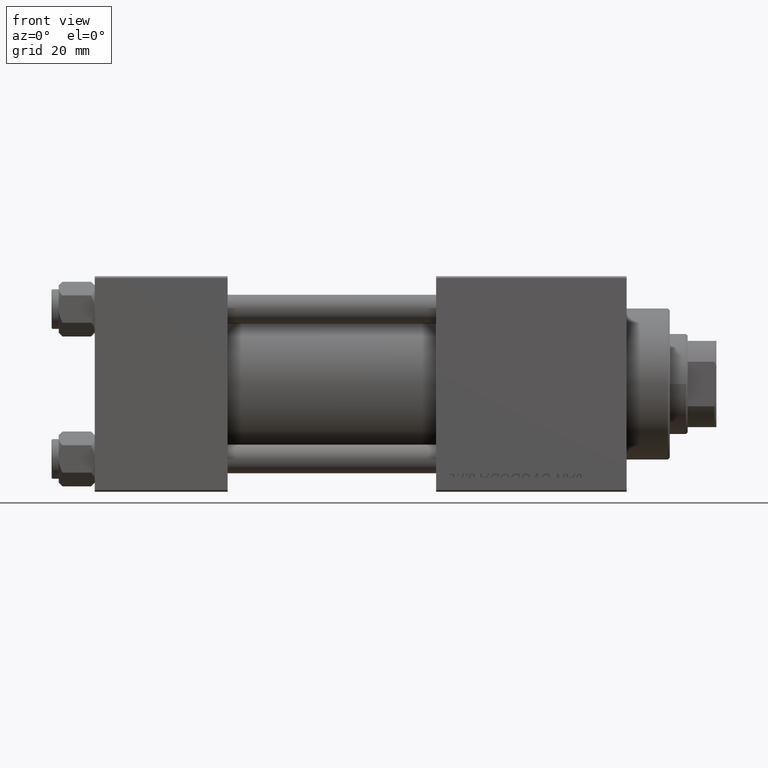
[diagram: clean part render]
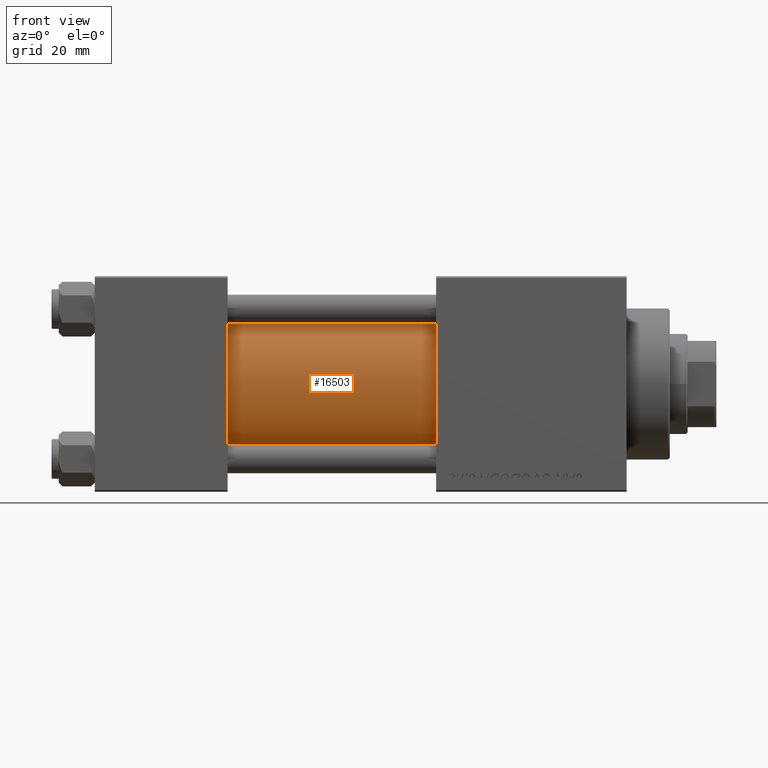
[diagram: same view with one face highlighted and labeled with its STEP entity id]
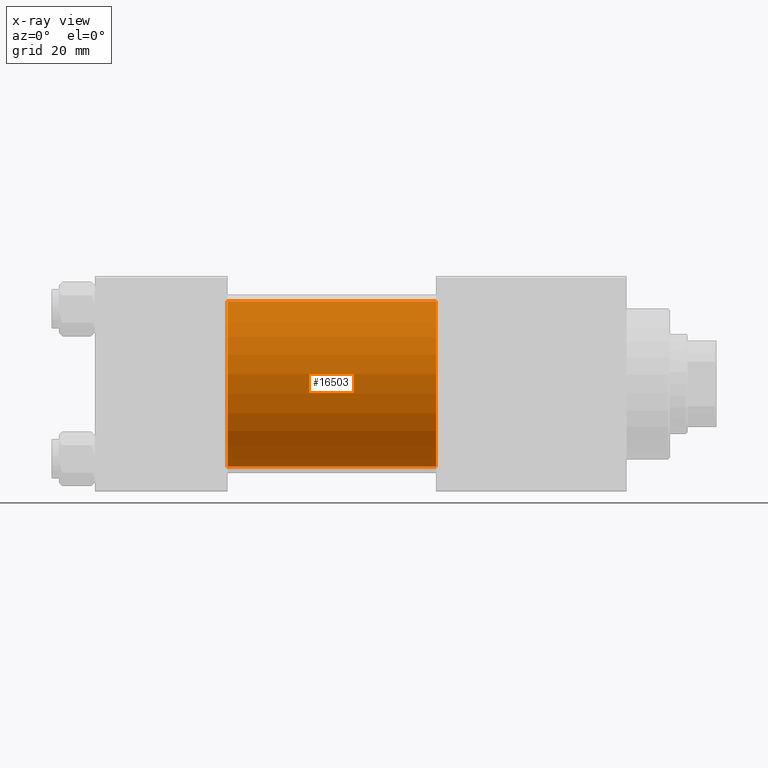
[diagram: x-ray of the same camera — body ghosted, the highlighted face saturated]
A machine part, front view. The second image highlights one B-rep face of the part: STEP entity #16503.
The next image is the same camera in x-ray: the body ghosted, the highlighted face saturated — about 1% of this face is hidden behind the body in this view.
In plain terms, the highlighted cylindrical surface (partial cylindrical patch) has radius 23 mm, axis along (-1, -0, -0).
Its self-contained STEP definition (entity closure, byte-faithful):
#791 = CARTESIAN_POINT ( 'NONE',  ( 37.00000000000000000, -2.602085213965210642E-15, 23.00000000000000000 ) ) ;
#930 = DIRECTION ( 'NONE',  ( 0.000000000000000000, 0.000000000000000000, 1.000000000000000000 ) ) ;
#4155 = DIRECTION ( 'NONE',  ( 0.000000000000000000, 0.000000000000000000, -1.000000000000000000 ) ) ;
#4233 = CARTESIAN_POINT ( 'NONE',  ( 95.00000000000000000, -2.602085213965210642E-15, 0.000000000000000000 ) ) ;
#4792 = CIRCLE ( 'NONE', #12087, 23.00000000000000000 ) ;
#6290 = EDGE_CURVE ( 'NONE', #24412, #26504, #28855, .T. ) ;
#7911 = CARTESIAN_POINT ( 'NONE',  ( 95.00000000000000000, 2.146024240737012665E-16, -23.00000000000000000 ) ) ;
#8526 = VECTOR ( 'NONE', #39542, 1000.000000000000000 ) ;
#8654 = LINE ( 'NONE', #7911, #13419 ) ;
#10145 = EDGE_CURVE ( 'NONE', #47544, #46483, #8654, .T. ) ;
#12087 = AXIS2_PLACEMENT_3D ( 'NONE', #35126, #46560, #4155 ) ;
#13419 = VECTOR ( 'NONE', #16529, 1000.000000000000000 ) ;
#14191 = ORIENTED_EDGE ( 'NONE', *, *, #10145, .F. ) ;
#16260 = CIRCLE ( 'NONE', #49547, 23.00000000000000000 ) ;
#16503 = ADVANCED_FACE ( 'NONE', ( #43831 ), #24536, .T. ) ;
#16529 = DIRECTION ( 'NONE',  ( -1.000000000000000000, -0.000000000000000000, -0.000000000000000000 ) ) ;
#24277 = DIRECTION ( 'NONE',  ( -1.000000000000000000, -0.000000000000000000, -0.000000000000000000 ) ) ;
#24412 = VERTEX_POINT ( 'NONE', #35895 ) ;
#24536 = CYLINDRICAL_SURFACE ( 'NONE', #33883, 23.00000000000000000 ) ;
#26504 = VERTEX_POINT ( 'NONE', #791 ) ;
#28316 = CARTESIAN_POINT ( 'NONE',  ( 95.00000000000000000, 2.146024240737012665E-16, -23.00000000000000000 ) ) ;
#28855 = LINE ( 'NONE', #35985, #8526 ) ;
#29121 = ORIENTED_EDGE ( 'NONE', *, *, #6290, .T. ) ;
#29548 = ORIENTED_EDGE ( 'NONE', *, *, #45581, .T. ) ;
#31024 = DIRECTION ( 'NONE',  ( 0.000000000000000000, 0.000000000000000000, 1.000000000000000000 ) ) ;
#31517 = CARTESIAN_POINT ( 'NONE',  ( 37.00000000000000000, -2.602085213965210642E-15, 0.000000000000000000 ) ) ;
#33448 = EDGE_LOOP ( 'NONE', ( #14191, #49548, #29121, #29548 ) ) ;
#33883 = AXIS2_PLACEMENT_3D ( 'NONE', #4233, #24277, #930 ) ;
#35126 = CARTESIAN_POINT ( 'NONE',  ( 95.00000000000000000, -2.602085213965210642E-15, 0.000000000000000000 ) ) ;
#35895 = CARTESIAN_POINT ( 'NONE',  ( 95.00000000000000000, -2.602085213965210642E-15, 23.00000000000000000 ) ) ;
#35985 = CARTESIAN_POINT ( 'NONE',  ( 95.00000000000000000, -2.602085213965210642E-15, 23.00000000000000000 ) ) ;
#37650 = CARTESIAN_POINT ( 'NONE',  ( 37.00000000000000000, 2.146024240737012665E-16, -23.00000000000000000 ) ) ;
#38153 = DIRECTION ( 'NONE',  ( 1.000000000000000000, -0.000000000000000000, 0.000000000000000000 ) ) ;
#39542 = DIRECTION ( 'NONE',  ( -1.000000000000000000, -0.000000000000000000, -0.000000000000000000 ) ) ;
#41098 = EDGE_CURVE ( 'NONE', #24412, #47544, #4792, .T. ) ;
#43831 = FACE_OUTER_BOUND ( 'NONE', #33448, .T. ) ;
#45581 = EDGE_CURVE ( 'NONE', #26504, #46483, #16260, .T. ) ;
#46483 = VERTEX_POINT ( 'NONE', #37650 ) ;
#46560 = DIRECTION ( 'NONE',  ( 1.000000000000000000, 0.000000000000000000, 0.000000000000000000 ) ) ;
#47544 = VERTEX_POINT ( 'NONE', #28316 ) ;
#49547 = AXIS2_PLACEMENT_3D ( 'NONE', #31517, #38153, #31024 ) ;
#49548 = ORIENTED_EDGE ( 'NONE', *, *, #41098, .F. ) ;